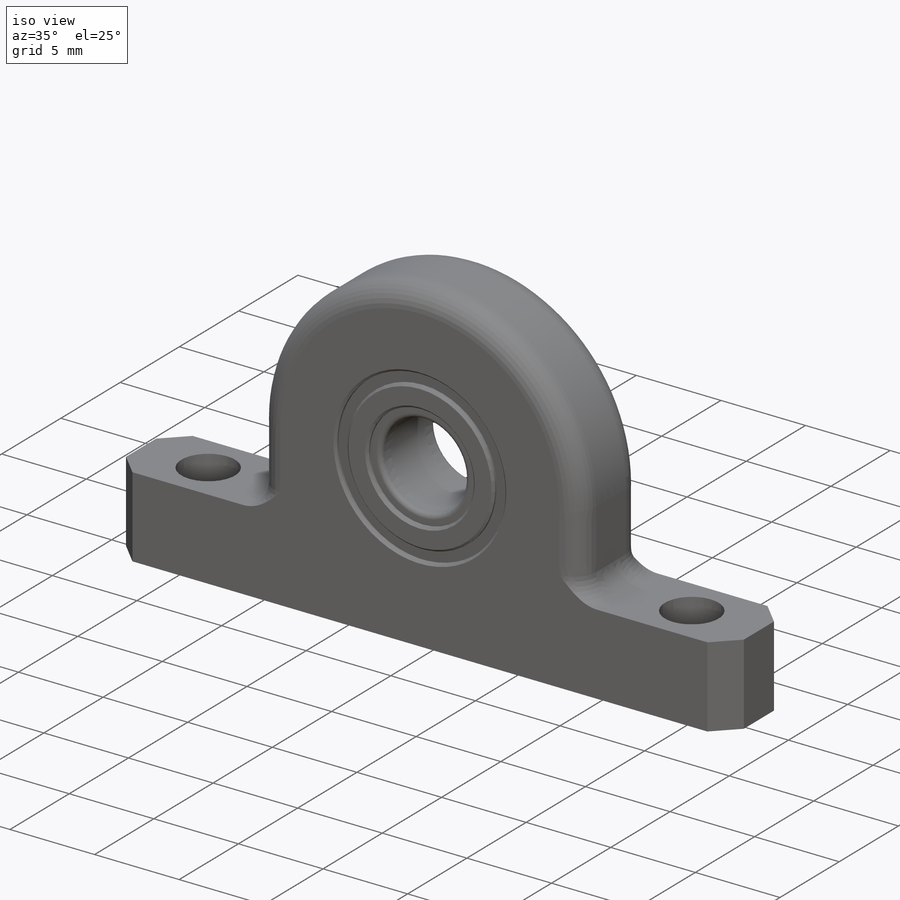
[diagram: iso view]
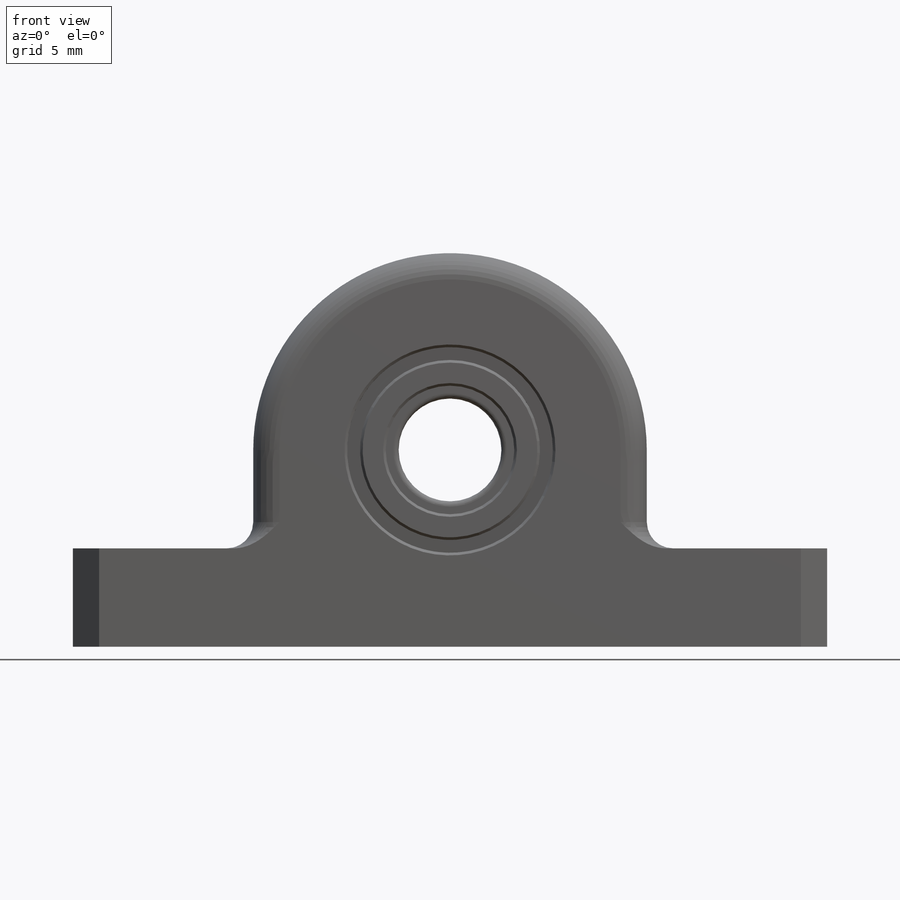
[diagram: front view]
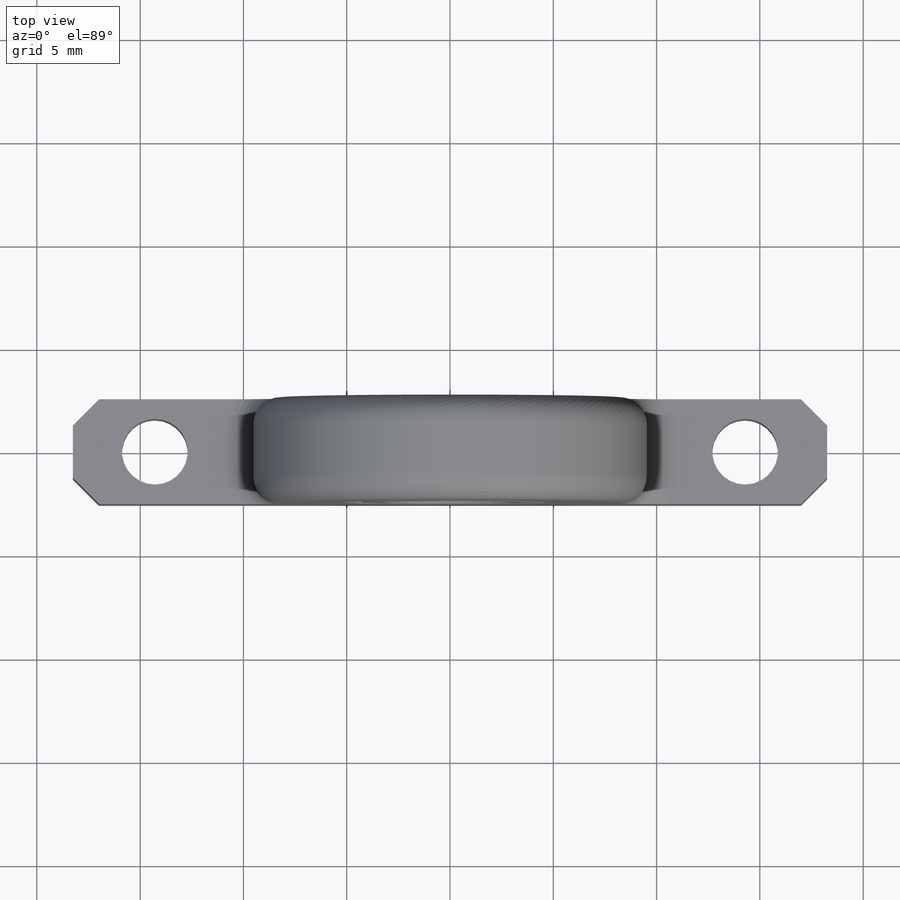
[diagram: top view]
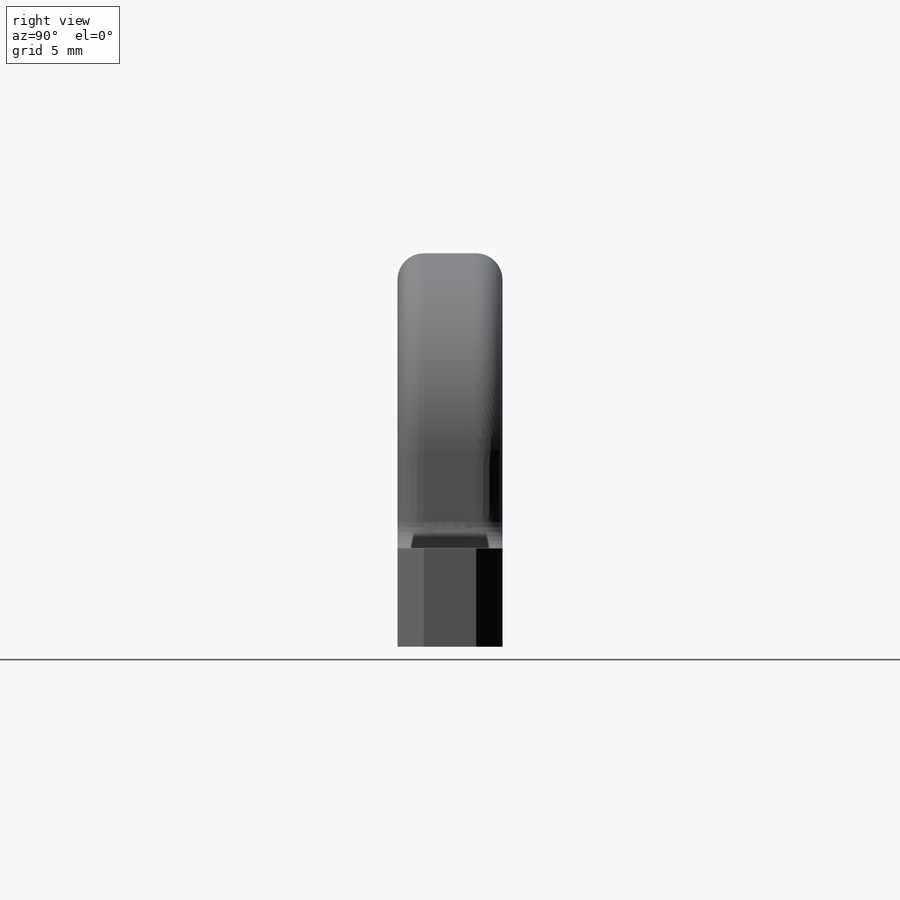
[diagram: right view]
SOLIDWORKS PART (.sldprt)
format: sldprt  version: not decoded by parser v0  size: 436,736 bytes
history: native  units: mm
features: sketch x5, fillet x3, chamfer x2, material x1, extrude x1, cut_extrude x1, revolve x1 (+11 scaffold rows collapsed)
feature tree (25):
  scaffold x11  (default folders/planes/origin — collapsed)
  material  "Material <not specified>"
  sketch  "Sketch1"  dims[c1.shaft dia=4.9784mm c1.I=19.05mm c1.D1=~110.645029mm c1.G=4.7625mm c1.B=36.5125mm c1.A=9.525mm c2.D1=~62.541626mm]
  sketch  "Sketch2"  dims[F=3.175mm E=5.08mm C=28.575mm]
  sketch  "Sketch3"
  extrude  "Extrude1"  [1 undecoded]
  sketch  "Sketch4"  dims[c1.D1=~1.24269mm c2.D1=45.0deg c2.D2=1.27mm]
  cut_extrude  "Cut-Extrude1"  [1 undecoded]
  fillet  "Fillet1"  Radius=1.27mm
  fillet  "Fillet2"  Radius=1.27mm
  chamfer  "Chamfer1"  Distance=0.127mm Angle=45deg
  sketch  "Sketch5"  dims[D1=0.254mm D2=2.4892mm D3=1.2446mm]
  revolve  "Revolve1"  Angle=360deg
  fillet  "Fillet3"  Radius=0.254mm
  chamfer  "Chamfer2"  Distance=0.127mm Angle=45deg
decode coverage: 10 of 13 modeling features carry decoded parameters
note: ~ marks probable driven/reference dimensions
note: 2 parameter values undecoded
note: suppression state not decoded; provenance and decode notes live in map.json
